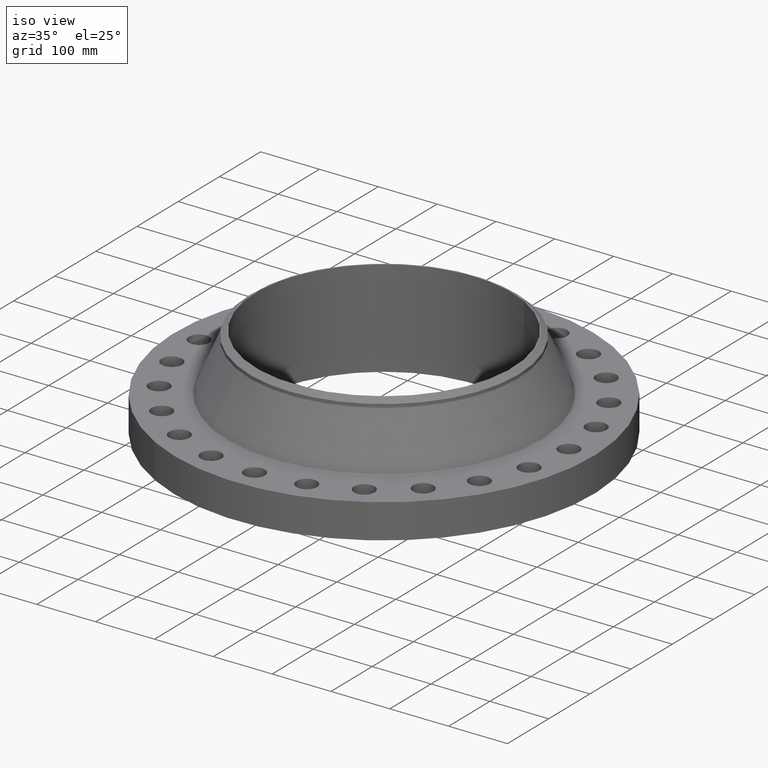
[diagram: clean part render]
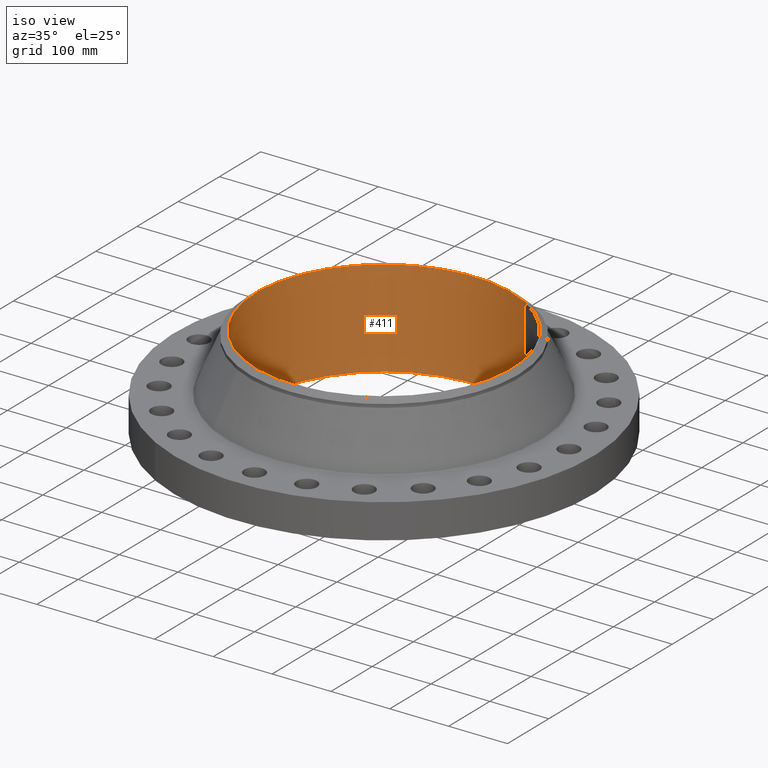
[diagram: same view with one face highlighted and labeled with its STEP entity id]
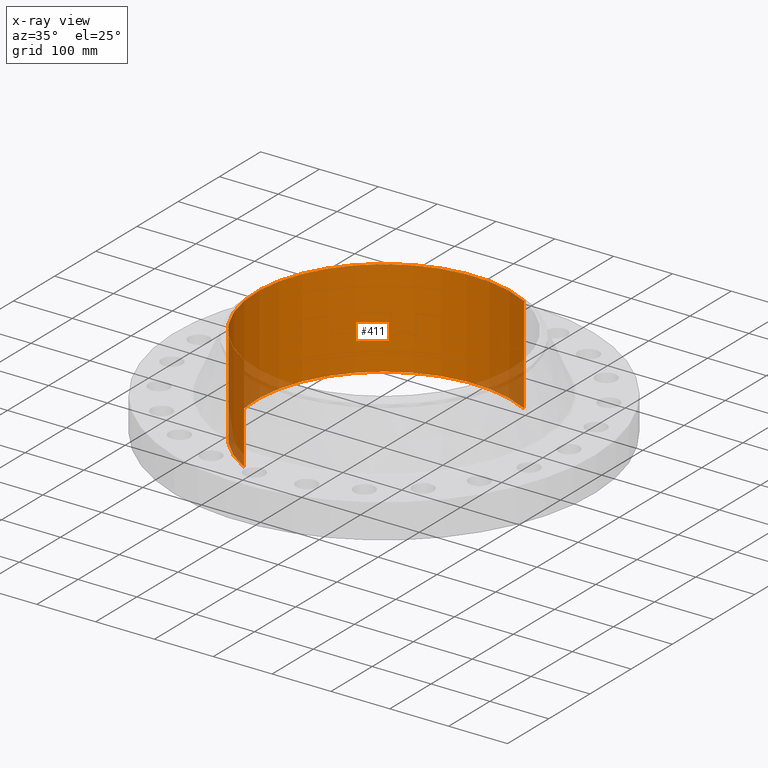
[diagram: x-ray of the same camera — body ghosted, the highlighted face saturated]
A machine part, iso view. The second image highlights one B-rep face of the part: STEP entity #411.
The next image is the same camera in x-ray: the body ghosted, the highlighted face saturated — about 7% of this face is hidden behind the body in this view.
In plain terms, the highlighted cylindrical surface (partial cylindrical patch) has radius 217.475 mm, axis along (0, 0, -1).
Its self-contained STEP definition (entity closure, byte-faithful):
#358=AXIS2_PLACEMENT_3D('Cylinder Axis2P3D',#355,#356,#357) ;
#397=AXIS2_PLACEMENT_3D('Circle Axis2P3D',#395,#396,$) ;
#402=AXIS2_PLACEMENT_3D('Circle Axis2P3D',#400,#401,$) ;
#355=CARTESIAN_POINT('Axis2P3D Location',(0.,0.,2.93850000001)) ;
#364=CARTESIAN_POINT('Vertex',(4.10484146155,7.51386189494,6.19000000002)) ;
#366=CARTESIAN_POINT('Vertex',(-4.10484146155,-7.51386189494,6.19000000002)) ;
#369=CARTESIAN_POINT('Line Origine',(4.10484146155,7.51386189494,2.93850000001)) ;
#373=CARTESIAN_POINT('Vertex',(4.10484146155,7.51386189494,-0.313000000001)) ;
#380=CARTESIAN_POINT('Vertex',(-4.10484146155,-7.51386189494,-0.313000000001)) ;
#383=CARTESIAN_POINT('Line Origine',(-4.10484146155,-7.51386189494,2.93850000001)) ;
#395=CARTESIAN_POINT('Axis2P3D Location',(0.,0.,6.19000000002)) ;
#400=CARTESIAN_POINT('Axis2P3D Location',(0.,0.,-0.313000000001)) ;
#356=DIRECTION('Axis2P3D Direction',(0.,0.,-0.0393700787402)) ;
#357=DIRECTION('Axis2P3D XDirection',(-0.0188750212049,-0.0345504945626,0.)) ;
#370=DIRECTION('Vector Direction',(0.,0.,-0.0393700787402)) ;
#384=DIRECTION('Vector Direction',(0.,0.,-0.0393700787402)) ;
#396=DIRECTION('Axis2P3D Direction',(0.,0.,-0.0393700787402)) ;
#401=DIRECTION('Axis2P3D Direction',(0.,0.,-0.0393700787402)) ;
#371=VECTOR('Line Direction',#370,0.0393700787402) ;
#385=VECTOR('Line Direction',#384,0.0393700787402) ;
#406=ORIENTED_EDGE('',*,*,#399,.F.) ;
#407=ORIENTED_EDGE('',*,*,#387,.T.) ;
#408=ORIENTED_EDGE('',*,*,#404,.T.) ;
#409=ORIENTED_EDGE('',*,*,#375,.F.) ;
#411=ADVANCED_FACE('PartBody',(#410),#359,.F.) ;
#398=CIRCLE('generated circle',#397,8.56200000003) ;
#403=CIRCLE('generated circle',#402,8.56200000003) ;
#359=CYLINDRICAL_SURFACE('generated cylinder',#358,8.56200000003) ;
#375=EDGE_CURVE('',#365,#374,#372,.T.) ;
#387=EDGE_CURVE('',#367,#381,#386,.T.) ;
#399=EDGE_CURVE('',#367,#365,#398,.T.) ;
#404=EDGE_CURVE('',#381,#374,#403,.T.) ;
#405=EDGE_LOOP('',(#406,#407,#408,#409)) ;
#410=FACE_OUTER_BOUND('',#405,.T.) ;
#372=LINE('Line',#369,#371) ;
#386=LINE('Line',#383,#385) ;
#365=VERTEX_POINT('',#364) ;
#367=VERTEX_POINT('',#366) ;
#374=VERTEX_POINT('',#373) ;
#381=VERTEX_POINT('',#380) ;